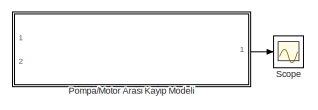
[diagram: root canvas - part 1/2, top left region]
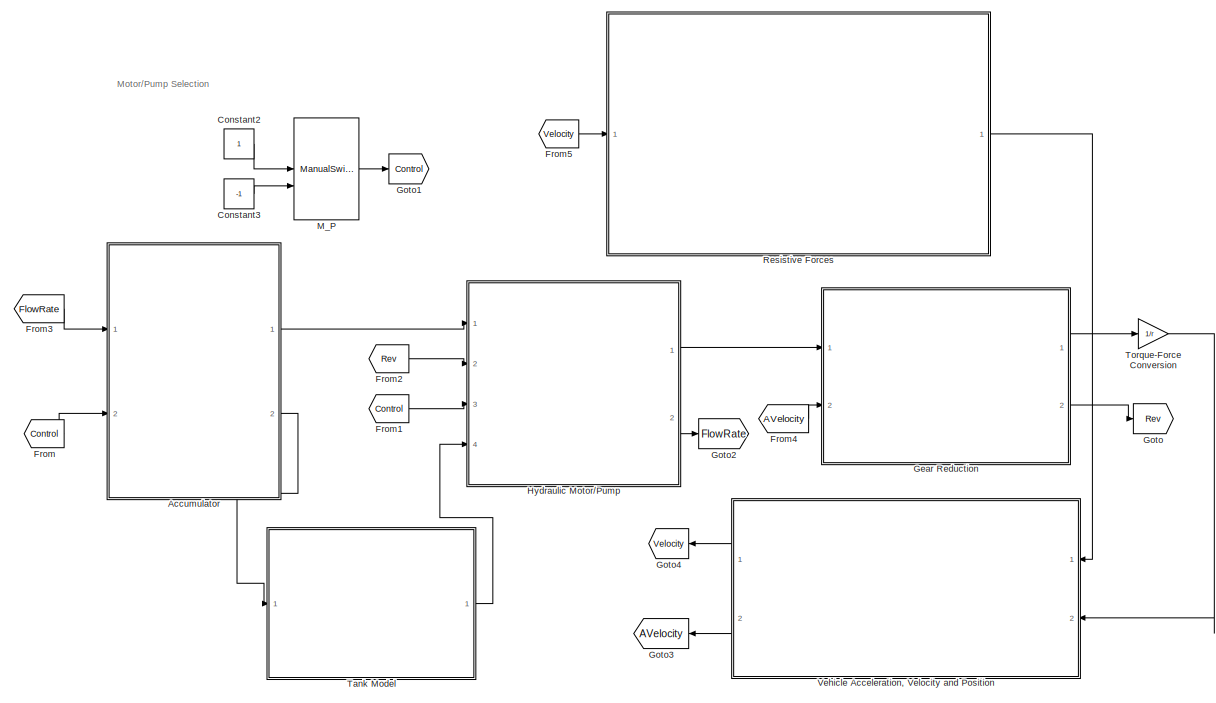
[diagram: root canvas - part 2/2, right side, full height]
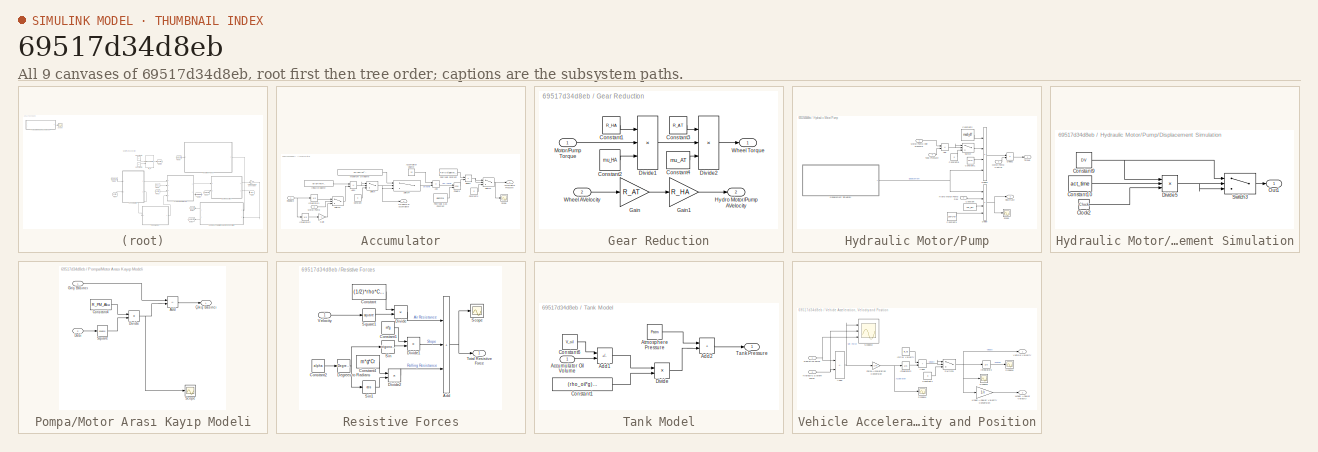
[diagram: thumbnail index - all 9 canvases of the model, root first then tree order]
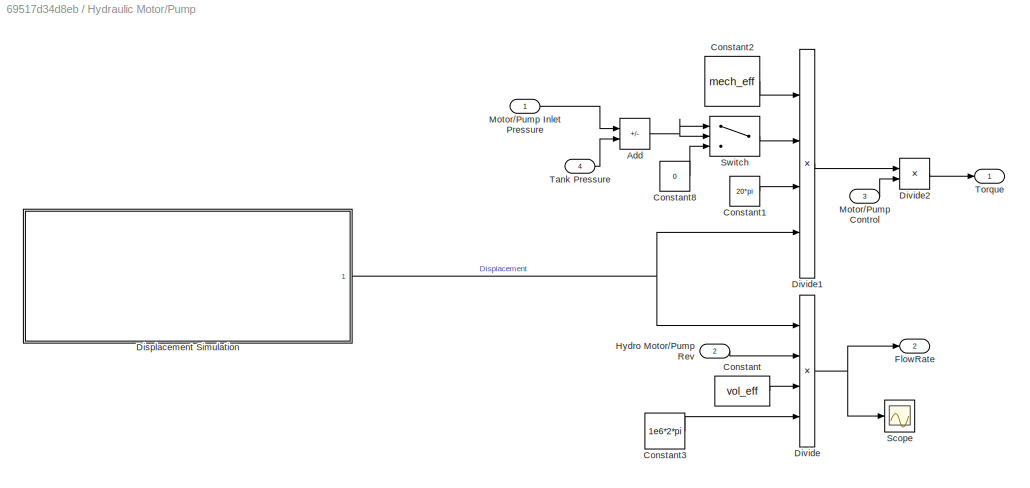
MODEL slx_69517d34d8eb
KIND model
CONFIG AbsTol = auto
CONFIG EnableMultiTasking = off
CONFIG FixedStep = auto
CONFIG MaxStep = auto
CONFIG MinStep = auto
CONFIG RelTol = 1e-3
CONFIG SampleTimeConstraint = Unconstrained
CONFIG SolverName = VariableStepAuto
CONFIG StartTime = 0.0
CONFIG StopTime = T_sim
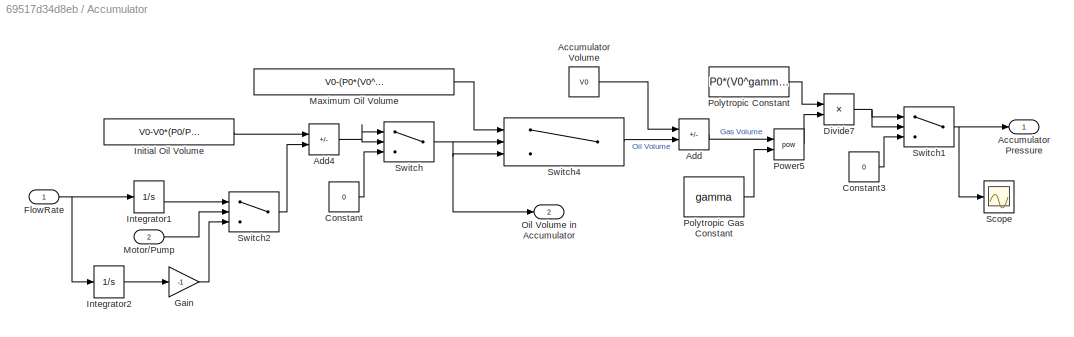
BLOCK [SubSystem] Accumulator
  Ports = [2, 2]
  RequestExecContextInheritance = off
BLOCK [Outport] Accumulator/Accumulator Pressure
BLOCK [Constant] Accumulator/Accumulator Volume
  Value = V0
BLOCK [Sum] Accumulator/Add
  IconShape = rectangular
  Inputs = +-
  Ports = [2, 1]
BLOCK [Sum] Accumulator/Add4
  IconShape = rectangular
  Inputs = +-
  Ports = [2, 1]
BLOCK [Constant] Accumulator/Constant
  Value = 0
BLOCK [Constant] Accumulator/Constant3
  Value = 0
BLOCK [Product] Accumulator/Divide7
  Inputs = */
  Ports = [2, 1]
BLOCK [Inport] Accumulator/FlowRate
BLOCK [Gain] Accumulator/Gain
  Gain = -1
BLOCK [Constant] Accumulator/Initial Oil Volume
  Value = V0-V0*(P0/P1)^(1/gamma)
BLOCK [Integrator] Accumulator/Integrator1
  Ports = [1, 1]
BLOCK [Integrator] Accumulator/Integrator2
  Ports = [1, 1]
BLOCK [Constant] Accumulator/Maximum Oil Volume
  Value = V0-(P0*(V0^gamma)/Pmax)^(1/gamma)
BLOCK [Inport] Accumulator/Motor//Pump
  Port = 2
BLOCK [Outport] Accumulator/Oil Volume in Accumulator
  Port = 2
BLOCK [Constant] Accumulator/Polytropic Constant
  Value = P0*(V0^gamma)
BLOCK [Constant] Accumulator/Polytropic Gas Constant
  Value = gamma
BLOCK [Math] Accumulator/Power5
  Operator = pow
  Ports = [2, 1]
BLOCK [Scope] Accumulator/Scope
  Floating = off
  NumInputPorts = 1
  Ports = [1]
  ScopeSpecificationString = Simulink.scopes.TimeScopeBlockCfg('CurrentConfiguration', extmgr.ConfigurationSet(extmgr.Configuration('Core','General UI',true),extmgr.Configuration('Core','Source UI',true),extmgr.Configuration('Sources','WiredSimulink',true,'DataLoggingVariableName','AccPressure','DataLogging',true,'DataLoggingSaveFormat','Array'),extmgr.Configuration('Visuals','Time Domain',true,'SerializedDisplays',{struct('M...<+1427ch>
BLOCK [Switch] Accumulator/Switch
  Criteria = u2 > Threshold
  InputSameDT = off
  SaturateOnIntegerOverflow = off
BLOCK [Switch] Accumulator/Switch1
  Criteria = u2 > Threshold
  InputSameDT = off
  SaturateOnIntegerOverflow = off
  Threshold = P0
BLOCK [Switch] Accumulator/Switch2
  InputSameDT = off
  SaturateOnIntegerOverflow = off
BLOCK [Switch] Accumulator/Switch4
  Criteria = u2 > Threshold
  InputSameDT = off
  SaturateOnIntegerOverflow = off
  Threshold = V0-(P0*(V0^gamma)/Pmax)^(1/gamma)
BLOCK [Constant] Constant2
BLOCK [Constant] Constant3
  Value = -1
BLOCK [From] From
  GotoTag = Control
BLOCK [From] From1
  GotoTag = Control
BLOCK [From] From2
  GotoTag = Rev
BLOCK [From] From3
  GotoTag = FlowRate
BLOCK [From] From4
  GotoTag = AVelocity
BLOCK [From] From5
  GotoTag = Velocity
BLOCK [SubSystem] Gear Reduction
  Ports = [2, 2]
  RequestExecContextInheritance = off
BLOCK [Constant] Gear Reduction/Constant1
  Value = R_HA
BLOCK [Constant] Gear Reduction/Constant2
  Value = mu_HA
BLOCK [Constant] Gear Reduction/Constant3
  Value = R_AT
BLOCK [Constant] Gear Reduction/Constant4
  Value = mu_AT
BLOCK [Product] Gear Reduction/Divide1
  Inputs = ***
  Ports = [3, 1]
BLOCK [Product] Gear Reduction/Divide2
  Inputs = ***
  Ports = [3, 1]
BLOCK [Gain] Gear Reduction/Gain
  Gain = R_AT
BLOCK [Gain] Gear Reduction/Gain1
  Gain = R_HA
BLOCK [Outport] Gear Reduction/Hydro Motor//Pump AVelocity
  Port = 2
BLOCK [Inport] Gear Reduction/Motor//Pump Torque
BLOCK [Inport] Gear Reduction/Wheel AVelocity
  Port = 2
BLOCK [Outport] Gear Reduction/Wheel Torque
BLOCK [Goto] Goto
  GotoTag = Rev
BLOCK [Goto] Goto1
  GotoTag = Control
BLOCK [Goto] Goto2
  GotoTag = FlowRate
BLOCK [Goto] Goto3
  GotoTag = AVelocity
BLOCK [Goto] Goto4
  GotoTag = Velocity
BLOCK [SubSystem] Hydraulic Motor//Pump
  Ports = [4, 2]
  RequestExecContextInheritance = off
BLOCK [Sum] Hydraulic Motor//Pump/Add
  IconShape = rectangular
  Inputs = +-
  Ports = [2, 1]
BLOCK [Constant] Hydraulic Motor//Pump/Constant
  Value = vol_eff
BLOCK [Constant] Hydraulic Motor//Pump/Constant1
  Value = 20*pi
BLOCK [Constant] Hydraulic Motor//Pump/Constant2
  Value = mech_eff
BLOCK [Constant] Hydraulic Motor//Pump/Constant3
  Value = 1e6*2*pi
BLOCK [Constant] Hydraulic Motor//Pump/Constant8
  Value = 0
BLOCK [SubSystem] Hydraulic Motor//Pump/Displacement Simulation
  Ports = [0, 1]
  RequestExecContextInheritance = off
BLOCK [Clock] Hydraulic Motor//Pump/Displacement Simulation/Clock2
BLOCK [Constant] Hydraulic Motor//Pump/Displacement Simulation/Constant10
  Value = act_time
BLOCK [Constant] Hydraulic Motor//Pump/Displacement Simulation/Constant9
  Value = DV
BLOCK [Product] Hydraulic Motor//Pump/Displacement Simulation/Divide5
  Inputs = */*
  Ports = [3, 1]
BLOCK [Outport] Hydraulic Motor//Pump/Displacement Simulation/Out1
BLOCK [Switch] Hydraulic Motor//Pump/Displacement Simulation/Switch3
  InputSameDT = off
  SaturateOnIntegerOverflow = off
  Threshold = DV
BLOCK [Product] Hydraulic Motor//Pump/Divide
  Inputs = **//
  Ports = [4, 1]
BLOCK [Product] Hydraulic Motor//Pump/Divide1
  Inputs = **/*
  Ports = [4, 1]
BLOCK [Product] Hydraulic Motor//Pump/Divide2
  Inputs = **
  Ports = [2, 1]
BLOCK [Outport] Hydraulic Motor//Pump/FlowRate
  Port = 2
BLOCK [Inport] Hydraulic Motor//Pump/Hydro Motor//Pump Rev
  Port = 2
BLOCK [Inport] Hydraulic Motor//Pump/Motor//Pump Control
  Port = 3
BLOCK [Inport] Hydraulic Motor//Pump/Motor//Pump Inlet Pressure
BLOCK [Scope] Hydraulic Motor//Pump/Scope
  Floating = off
  NumInputPorts = 1
  Ports = [1]
  ScopeSpecificationString = Simulink.scopes.TimeScopeBlockCfg('CurrentConfiguration', extmgr.ConfigurationSet(extmgr.Configuration('Core','General UI',true),extmgr.Configuration('Core','Source UI',true),extmgr.Configuration('Sources','WiredSimulink',true,'DataLoggingVariableName','flowrt','DataLogging',true,'DataLoggingSaveFormat','Array'),extmgr.Configuration('Visuals','Time Domain',true,'SerializedDisplays',{struct('MinYLi...<+1412ch>
BLOCK [Switch] Hydraulic Motor//Pump/Switch
  Criteria = u2 > Threshold
  InputSameDT = off
  SaturateOnIntegerOverflow = off
BLOCK [Inport] Hydraulic Motor//Pump/Tank Pressure
  Port = 4
BLOCK [Outport] Hydraulic Motor//Pump/Torque
BLOCK [ManualSwitch] M_P
  CurrentSetting = 0
BLOCK [SubSystem] Pompa//Motor Arası Kayıp Modeli
  Ports = [2, 1]
  RequestExecContextInheritance = off
BLOCK [Sum] Pompa//Motor Arası Kayıp Modeli/Add
  IconShape = rectangular
  Inputs = +-
  Ports = [2, 1]
BLOCK [Constant] Pompa//Motor Arası Kayıp Modeli/Constant4
  Value = R_PM_Aku
BLOCK [Inport] Pompa//Motor Arası Kayıp Modeli/Debi
  Port = 2
BLOCK [Product] Pompa//Motor Arası Kayıp Modeli/Divide
  Inputs = **
  Ports = [2, 1]
BLOCK [Inport] Pompa//Motor Arası Kayıp Modeli/Giriş Basıncı
BLOCK [Scope] Pompa//Motor Arası Kayıp Modeli/Scope
  Floating = off
  NumInputPorts = 1
  Ports = [1]
  ScopeSpecificationString = Simulink.scopes.TimeScopeBlockCfg('CurrentConfiguration', extmgr.ConfigurationSet(extmgr.Configuration('Core','General UI',true),extmgr.Configuration('Core','Source UI',true),extmgr.Configuration('Sources','WiredSimulink',true,'DataLoggingVariableName','ScopeData2'),extmgr.Configuration('Visuals','Time Domain',true,'SerializedDisplays',{struct('MinYLimReal','-0.00000006','MaxYLimReal','0.00000054'...<+1417ch>
BLOCK [Math] Pompa//Motor Arası Kayıp Modeli/Square
  Operator = square
  Ports = [1, 1]
BLOCK [Outport] Pompa//Motor Arası Kayıp Modeli/Çıkış Basıncı
BLOCK [SubSystem] Resistive Forces
  Ports = [1, 1]
  RequestExecContextInheritance = off
BLOCK [Sum] Resistive Forces/Add
  IconShape = rectangular
  Inputs = +++
  Ports = [3, 1]
BLOCK [Constant] Resistive Forces/Constant
  Value = (1/2)*rho*Cd*A
BLOCK [Constant] Resistive Forces/Constant1
  Value = m*g
BLOCK [Constant] Resistive Forces/Constant2
  Value = alpha
BLOCK [Constant] Resistive Forces/Constant4
  Value = m*g*Cr
BLOCK [Reference] Resistive Forces/Degrees to Radians  REF=simulink_extras/Transformations/Degrees to
Radians
  Ports = [1, 1]
  SourceBlock = simulink_extras/Transformations/Degrees to\nRadians
  SourceProductBaseCode = SL
  SourceType = DegreesToRadians
BLOCK [Product] Resistive Forces/Divide
  Inputs = **
  Ports = [2, 1]
BLOCK [Product] Resistive Forces/Divide1
  Inputs = **
  Ports = [2, 1]
BLOCK [Product] Resistive Forces/Divide2
  Inputs = **
  Ports = [2, 1]
BLOCK [Scope] Resistive Forces/Scope
  Floating = off
  NumInputPorts = 1
  Ports = [1]
  ScopeSpecificationString = Simulink.scopes.TimeScopeBlockCfg('CurrentConfiguration', extmgr.ConfigurationSet(extmgr.Configuration('Core','General UI',true),extmgr.Configuration('Core','Source UI',true),extmgr.Configuration('Sources','WiredSimulink',true,'DataLoggingVariableName','ResForce','DataLogging',true,'DataLoggingSaveFormat','Array'),extmgr.Configuration('Visuals','Time Domain',true,'SerializedDisplays',{struct('MinY...<+1465ch>
BLOCK [Trigonometry] Resistive Forces/Sin
  Ports = [1, 1]
BLOCK [Trigonometry] Resistive Forces/Sin1
  Operator = cos
  Ports = [1, 1]
BLOCK [Math] Resistive Forces/Square1
  Operator = square
  Ports = [1, 1]
BLOCK [Outport] Resistive Forces/Total Resistive Force
BLOCK [Inport] Resistive Forces/Velocity
  NameLocation = top
BLOCK [Scope] Scope
  Floating = off
  NumInputPorts = 1
  Ports = [1]
  ScopeSpecificationString = Simulink.scopes.TimeScopeBlockCfg('CurrentConfiguration', extmgr.ConfigurationSet(extmgr.Configuration('Core','General UI',true),extmgr.Configuration('Core','Source UI',true),extmgr.Configuration('Sources','WiredSimulink',true,'DataLoggingVariableName','ScopeData4'),extmgr.Configuration('Visuals','Time Domain',true,'SerializedDisplays',{struct('MinYLimReal','-49.375','MaxYLimReal','444.375','YLabe...<+1497ch>
BLOCK [SubSystem] Tank Model
  Ports = [1, 1]
  RequestExecContextInheritance = off
BLOCK [Inport] Tank Model/Accumulator Oil Volume
BLOCK [Sum] Tank Model/Add1
  IconShape = rectangular
  Inputs = +-
  Ports = [2, 1]
BLOCK [Sum] Tank Model/Add2
  IconShape = rectangular
  Ports = [2, 1]
BLOCK [Constant] Tank Model/Atmosphere Pressure
  Value = Patm
BLOCK [Constant] Tank Model/Constant1
  Value = (rho_oil*g)/(A_Tank*1e5)
BLOCK [Constant] Tank Model/Constant6
  Value = V_oil
BLOCK [Product] Tank Model/Divide
  Inputs = **
  Ports = [2, 1]
BLOCK [Outport] Tank Model/Tank Pressure
BLOCK [Gain] Torque-Force Conversion
  Gain = 1/r
BLOCK [SubSystem] Vehicle Acceleration, Velocity and Position
  Ports = [2, 2]
  RequestExecContextInheritance = off
BLOCK [Sum] Vehicle Acceleration, Velocity and Position/Add2
  IconShape = rectangular
  Inputs = -+
  Ports = [2, 1]
BLOCK [Sum] Vehicle Acceleration, Velocity and Position/Add3
  IconShape = rectangular
  Ports = [2, 1]
BLOCK [Constant] Vehicle Acceleration, Velocity and Position/Constant4
  Value = 0
BLOCK [Gain] Vehicle Acceleration, Velocity and Position/Force-Acceleration Conversion
  Gain = 1/m
BLOCK [Inport] Vehicle Acceleration, Velocity and Position/Hydraulic System Force
  Port = 2
BLOCK [Constant] Vehicle Acceleration, Velocity and Position/Initial Velocity
  Value = ilk_hiz
BLOCK [Integrator] Vehicle Acceleration, Velocity and Position/Integrator2
  Ports = [1, 1]
BLOCK [Integrator] Vehicle Acceleration, Velocity and Position/Integrator3
  Ports = [1, 1]
BLOCK [Gain] Vehicle Acceleration, Velocity and Position/Lineer-Angular Velocity Conversion
  Gain = 1/r
BLOCK [Inport] Vehicle Acceleration, Velocity and Position/Resistive Force
BLOCK [Scope] Vehicle Acceleration, Velocity and Position/Scope13
  Floating = off
  NumInputPorts = 3
  Ports = [3]
  ScopeSpecificationString = Simulink.scopes.TimeScopeBlockCfg('CurrentConfiguration', extmgr.ConfigurationSet(extmgr.Configuration('Core','General UI',true),extmgr.Configuration('Core','Source UI',true),extmgr.Configuration('Sources','WiredSimulink',true,'DataLoggingVariableName','ScopeData1'),extmgr.Configuration('Visuals','Time Domain',true,'SerializedDisplays',{struct('MinYLimReal','-5369.40955','MaxYLimReal','35243.77507...<+1509ch>
BLOCK [Scope] Vehicle Acceleration, Velocity and Position/Scope14
  Floating = off
  NumInputPorts = 1
  Ports = [1]
  ScopeSpecificationString = Simulink.scopes.TimeScopeBlockCfg('CurrentConfiguration', extmgr.ConfigurationSet(extmgr.Configuration('Core','General UI',true),extmgr.Configuration('Core','Source UI',true),extmgr.Configuration('Sources','WiredSimulink',true,'DataLoggingVariableName','Acceleration','DataLogging',true,'DataLoggingSaveFormat','Array'),extmgr.Configuration('Visuals','Time Domain',true,'SerializedDisplays',{struct('...<+1531ch>
BLOCK [Scope] Vehicle Acceleration, Velocity and Position/Scope15
  Floating = off
  NumInputPorts = 1
  Ports = [1]
  ScopeSpecificationString = Simulink.scopes.TimeScopeBlockCfg('CurrentConfiguration', extmgr.ConfigurationSet(extmgr.Configuration('Core','General UI',true),extmgr.Configuration('Core','Source UI',true),extmgr.Configuration('Sources','WiredSimulink',true,'DataLoggingVariableName','Velocity','DataLogging',true,'DataLoggingSaveFormat','Array'),extmgr.Configuration('Visuals','Time Domain',true,'SerializedDisplays',{struct('MinY...<+1482ch>
BLOCK [Scope] Vehicle Acceleration, Velocity and Position/Scope16
  Floating = off
  NumInputPorts = 1
  Ports = [1]
  ScopeSpecificationString = Simulink.scopes.TimeScopeBlockCfg('CurrentConfiguration', extmgr.ConfigurationSet(extmgr.Configuration('Core','General UI',true),extmgr.Configuration('Core','Source UI',true),extmgr.Configuration('Sources','WiredSimulink',true,'DataLoggingVariableName','Displacement','DataLogging',true,'DataLoggingSaveFormat','Array'),extmgr.Configuration('Visuals','Time Domain',true,'SerializedDisplays',{struct('...<+1501ch>
BLOCK [Switch] Vehicle Acceleration, Velocity and Position/Switch1
  Criteria = u2 > Threshold
  InputSameDT = off
  SaturateOnIntegerOverflow = off
BLOCK [Outport] Vehicle Acceleration, Velocity and Position/Vehicle Velocity
BLOCK [Outport] Vehicle Acceleration, Velocity and Position/Wheel Angular Velocity
  Port = 2
ANNOTATION (root): Motor/Pump Selection
LINE Accumulator/Accumulator Volume:1 -> Accumulator/Add:1
NET Accumulator/Add4:1 -> Accumulator/Switch:1, Accumulator/Switch:2
LINE Accumulator/Add:1 -> Accumulator/Power5:1
LINE Accumulator/Constant3:1 -> Accumulator/Switch1:3
LINE Accumulator/Constant:1 -> Accumulator/Switch:3
NET Accumulator/Divide7:1 -> Accumulator/Switch1:1, Accumulator/Switch1:2
NET Accumulator/FlowRate:1 -> Accumulator/Integrator1:1, Accumulator/Integrator2:1
LINE Accumulator/Gain:1 -> Accumulator/Switch2:3
LINE Accumulator/Initial Oil Volume:1 -> Accumulator/Add4:1
LINE Accumulator/Integrator1:1 -> Accumulator/Switch2:1
LINE Accumulator/Integrator2:1 -> Accumulator/Gain:1
LINE Accumulator/Maximum Oil Volume:1 -> Accumulator/Switch4:1
LINE Accumulator/Motor//Pump:1 -> Accumulator/Switch2:2
LINE Accumulator/Polytropic Constant:1 -> Accumulator/Divide7:1
LINE Accumulator/Polytropic Gas Constant:1 -> Accumulator/Power5:2
LINE Accumulator/Power5:1 -> Accumulator/Divide7:2
NET Accumulator/Switch1:1 -> Accumulator/Accumulator Pressure:1, Accumulator/Scope:1
LINE Accumulator/Switch2:1 -> Accumulator/Add4:2
LINE Accumulator/Switch4:1 -> Accumulator/Add:2
NET Accumulator/Switch:1 -> Accumulator/Oil Volume in Accumulator:1, Accumulator/Switch4:2, Accumulator/Switch4:3
LINE Accumulator:1 -> Hydraulic Motor//Pump:1
LINE Accumulator:2 -> Tank Model:1
LINE Constant2:1 -> M_P:1
LINE Constant3:1 -> M_P:2
LINE From1:1 -> Hydraulic Motor//Pump:3
LINE From2:1 -> Hydraulic Motor//Pump:2
LINE From3:1 -> Accumulator:1
LINE From4:1 -> Gear Reduction:2
LINE From5:1 -> Resistive Forces:1
LINE From:1 -> Accumulator:2
LINE Gear Reduction/Constant1:1 -> Gear Reduction/Divide1:1
LINE Gear Reduction/Constant2:1 -> Gear Reduction/Divide1:3
LINE Gear Reduction/Constant3:1 -> Gear Reduction/Divide2:1
LINE Gear Reduction/Constant4:1 -> Gear Reduction/Divide2:3
LINE Gear Reduction/Divide1:1 -> Gear Reduction/Divide2:2
LINE Gear Reduction/Divide2:1 -> Gear Reduction/Wheel Torque:1
LINE Gear Reduction/Gain1:1 -> Gear Reduction/Hydro Motor//Pump AVelocity:1
LINE Gear Reduction/Gain:1 -> Gear Reduction/Gain1:1
LINE Gear Reduction/Motor//Pump Torque:1 -> Gear Reduction/Divide1:2
LINE Gear Reduction/Wheel AVelocity:1 -> Gear Reduction/Gain:1
LINE Gear Reduction:1 -> Torque-Force Conversion:1
LINE Gear Reduction:2 -> Goto:1
NET Hydraulic Motor//Pump/Add:1 -> Hydraulic Motor//Pump/Switch:1, Hydraulic Motor//Pump/Switch:2
LINE Hydraulic Motor//Pump/Constant1:1 -> Hydraulic Motor//Pump/Divide1:3
LINE Hydraulic Motor//Pump/Constant2:1 -> Hydraulic Motor//Pump/Divide1:1
LINE Hydraulic Motor//Pump/Constant3:1 -> Hydraulic Motor//Pump/Divide:4
LINE Hydraulic Motor//Pump/Constant8:1 -> Hydraulic Motor//Pump/Switch:3
LINE Hydraulic Motor//Pump/Constant:1 -> Hydraulic Motor//Pump/Divide:3
LINE Hydraulic Motor//Pump/Displacement Simulation/Clock2:1 -> Hydraulic Motor//Pump/Displacement Simulation/Divide5:3
LINE Hydraulic Motor//Pump/Displacement Simulation/Constant10:1 -> Hydraulic Motor//Pump/Displacement Simulation/Divide5:2
NET Hydraulic Motor//Pump/Displacement Simulation/Constant9:1 -> Hydraulic Motor//Pump/Displacement Simulation/Divide5:1, Hydraulic Motor//Pump/Displacement Simulation/Switch3:1
NET Hydraulic Motor//Pump/Displacement Simulation/Divide5:1 -> Hydraulic Motor//Pump/Displacement Simulation/Switch3:2, Hydraulic Motor//Pump/Displacement Simulation/Switch3:3
LINE Hydraulic Motor//Pump/Displacement Simulation/Switch3:1 -> Hydraulic Motor//Pump/Displacement Simulation/Out1:1
NET Hydraulic Motor//Pump/Displacement Simulation:1 -> Hydraulic Motor//Pump/Divide1:4, Hydraulic Motor//Pump/Divide:1
LINE Hydraulic Motor//Pump/Divide1:1 -> Hydraulic Motor//Pump/Divide2:1
LINE Hydraulic Motor//Pump/Divide2:1 -> Hydraulic Motor//Pump/Torque:1
NET Hydraulic Motor//Pump/Divide:1 -> Hydraulic Motor//Pump/FlowRate:1, Hydraulic Motor//Pump/Scope:1
LINE Hydraulic Motor//Pump/Hydro Motor//Pump Rev:1 -> Hydraulic Motor//Pump/Divide:2
LINE Hydraulic Motor//Pump/Motor//Pump Control:1 -> Hydraulic Motor//Pump/Divide2:2
LINE Hydraulic Motor//Pump/Motor//Pump Inlet Pressure:1 -> Hydraulic Motor//Pump/Add:1
LINE Hydraulic Motor//Pump/Switch:1 -> Hydraulic Motor//Pump/Divide1:2
LINE Hydraulic Motor//Pump/Tank Pressure:1 -> Hydraulic Motor//Pump/Add:2
LINE Hydraulic Motor//Pump:1 -> Gear Reduction:1
LINE Hydraulic Motor//Pump:2 -> Goto2:1
LINE M_P:1 -> Goto1:1
LINE Pompa//Motor Arası Kayıp Modeli/Add:1 -> Pompa//Motor Arası Kayıp Modeli/Çıkış Basıncı:1
LINE Pompa//Motor Arası Kayıp Modeli/Constant4:1 -> Pompa//Motor Arası Kayıp Modeli/Divide:1
LINE Pompa//Motor Arası Kayıp Modeli/Debi:1 -> Pompa//Motor Arası Kayıp Modeli/Square:1
NET Pompa//Motor Arası Kayıp Modeli/Divide:1 -> Pompa//Motor Arası Kayıp Modeli/Add:2, Pompa//Motor Arası Kayıp Modeli/Scope:1
LINE Pompa//Motor Arası Kayıp Modeli/Giriş Basıncı:1 -> Pompa//Motor Arası Kayıp Modeli/Add:1
LINE Pompa//Motor Arası Kayıp Modeli/Square:1 -> Pompa//Motor Arası Kayıp Modeli/Divide:2
LINE Pompa//Motor Arası Kayıp Modeli:1 -> Scope:1
NET Resistive Forces/Add:1 -> Resistive Forces/Scope:1, Resistive Forces/Total Resistive Force:1
LINE Resistive Forces/Constant1:1 -> Resistive Forces/Divide1:1
LINE Resistive Forces/Constant2:1 -> Resistive Forces/Degrees to Radians:1
LINE Resistive Forces/Constant4:1 -> Resistive Forces/Divide2:1
LINE Resistive Forces/Constant:1 -> Resistive Forces/Divide:1
NET Resistive Forces/Degrees to Radians:1 -> Resistive Forces/Sin1:1, Resistive Forces/Sin:1
LINE Resistive Forces/Divide1:1 -> Resistive Forces/Add:2
LINE Resistive Forces/Divide2:1 -> Resistive Forces/Add:3
LINE Resistive Forces/Divide:1 -> Resistive Forces/Add:1
LINE Resistive Forces/Sin1:1 -> Resistive Forces/Divide2:2
LINE Resistive Forces/Sin:1 -> Resistive Forces/Divide1:2
LINE Resistive Forces/Square1:1 -> Resistive Forces/Divide:2
LINE Resistive Forces/Velocity:1 -> Resistive Forces/Square1:1
LINE Resistive Forces:1 -> Vehicle Acceleration, Velocity and Position:1
LINE Tank Model/Accumulator Oil Volume:1 -> Tank Model/Add1:2
LINE Tank Model/Add1:1 -> Tank Model/Divide:1
LINE Tank Model/Add2:1 -> Tank Model/Tank Pressure:1
LINE Tank Model/Atmosphere Pressure:1 -> Tank Model/Add2:1
LINE Tank Model/Constant1:1 -> Tank Model/Divide:2
LINE Tank Model/Constant6:1 -> Tank Model/Add1:1
LINE Tank Model/Divide:1 -> Tank Model/Add2:2
LINE Tank Model:1 -> Hydraulic Motor//Pump:4
LINE Torque-Force Conversion:1 -> Vehicle Acceleration, Velocity and Position:2
NET Vehicle Acceleration, Velocity and Position/Add2:1 -> Vehicle Acceleration, Velocity and Position/Force-Acceleration Conversion:1, Vehicle Acceleration, Velocity and Position/Scope13:1
NET Vehicle Acceleration, Velocity and Position/Add3:1 -> Vehicle Acceleration, Velocity and Position/Switch1:1, Vehicle Acceleration, Velocity and Position/Switch1:2
LINE Vehicle Acceleration, Velocity and Position/Constant4:1 -> Vehicle Acceleration, Velocity and Position/Switch1:3
NET Vehicle Acceleration, Velocity and Position/Force-Acceleration Conversion:1 -> Vehicle Acceleration, Velocity and Position/Integrator2:1, Vehicle Acceleration, Velocity and Position/Scope14:1
NET Vehicle Acceleration, Velocity and Position/Hydraulic System Force:1 -> Vehicle Acceleration, Velocity and Position/Add2:2, Vehicle Acceleration, Velocity and Position/Scope13:2
LINE Vehicle Acceleration, Velocity and Position/Initial Velocity:1 -> Vehicle Acceleration, Velocity and Position/Add3:1
LINE Vehicle Acceleration, Velocity and Position/Integrator2:1 -> Vehicle Acceleration, Velocity and Position/Add3:2
LINE Vehicle Acceleration, Velocity and Position/Integrator3:1 -> Vehicle Acceleration, Velocity and Position/Scope16:1
LINE Vehicle Acceleration, Velocity and Position/Lineer-Angular Velocity Conversion:1 -> Vehicle Acceleration, Velocity and Position/Wheel Angular Velocity:1
NET Vehicle Acceleration, Velocity and Position/Resistive Force:1 -> Vehicle Acceleration, Velocity and Position/Add2:1, Vehicle Acceleration, Velocity and Position/Scope13:3
NET Vehicle Acceleration, Velocity and Position/Switch1:1 -> Vehicle Acceleration, Velocity and Position/Integrator3:1, Vehicle Acceleration, Velocity and Position/Lineer-Angular Velocity Conversion:1, Vehicle Acceleration, Velocity and Position/Scope15:1, Vehicle Acceleration, Velocity and Position/Vehicle Velocity:1
LINE Vehicle Acceleration, Velocity and Position:1 -> Goto4:1
LINE Vehicle Acceleration, Velocity and Position:2 -> Goto3:1
note: NET lines group one-source signal fan-out (src -> all destinations, sorted); 1:1 wires keep LINE
